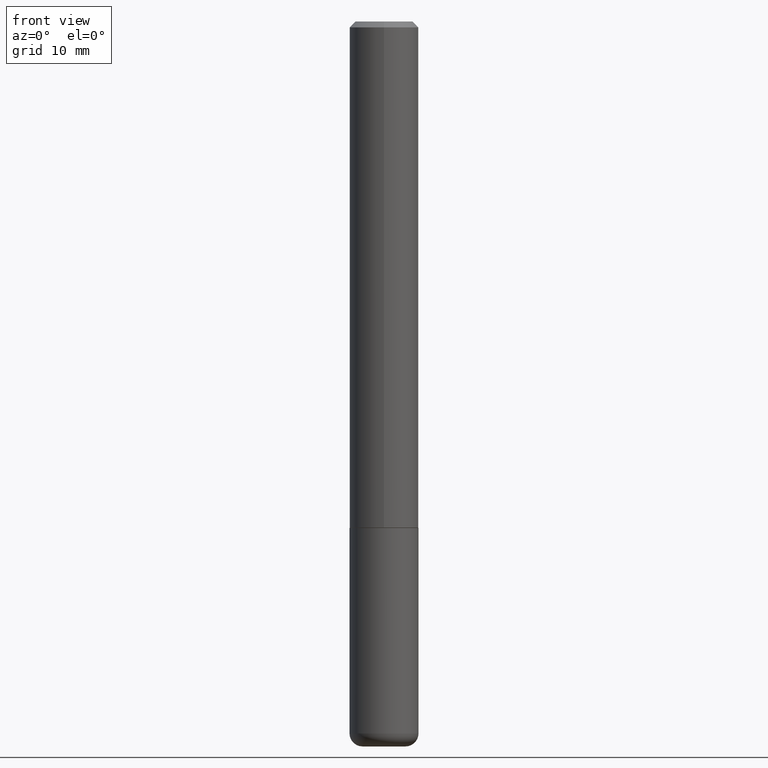
[diagram: clean part render]
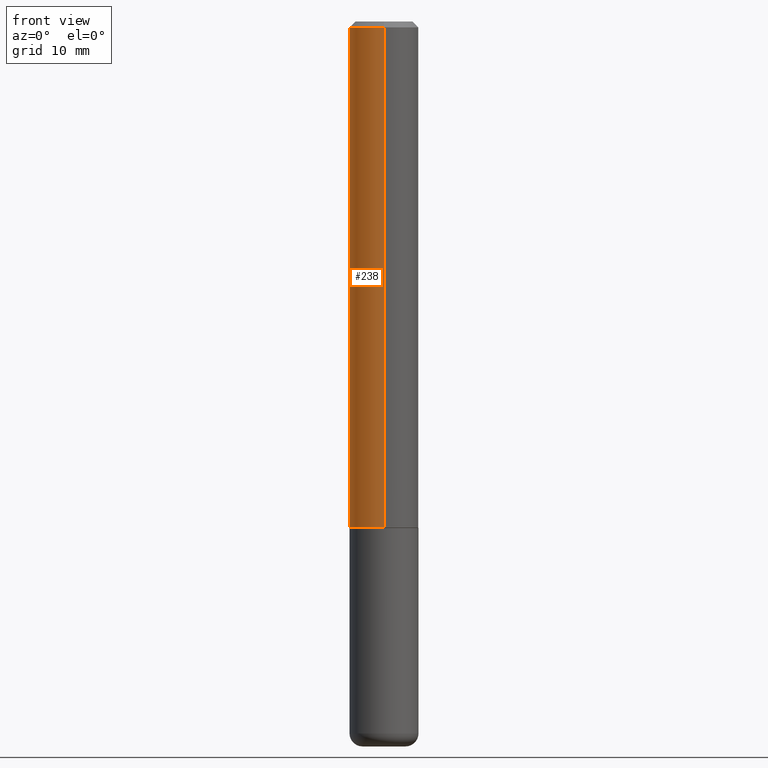
[diagram: same view with one face highlighted and labeled with its STEP entity id]
A machine part, front view. The second image highlights one B-rep face of the part: STEP entity #238.
In plain terms, the highlighted cylindrical surface (edge-blend (fillet) strip) has radius 2.9997 mm, axis along (-0, 0, 1).
Its self-contained STEP definition (entity closure, byte-faithful):
#4 = VECTOR ( 'NONE', #100, 39.37007874015748143 ) ;
#5 = CARTESIAN_POINT ( 'NONE',  ( 0.000000000000000000, 0.000000000000000000, 0.000000000000000000 ) ) ;
#22 = EDGE_LOOP ( 'NONE', ( #289, #51, #87, #152 ) ) ;
#27 = CARTESIAN_POINT ( 'NONE',  ( -8.246878922347489529E-16, -0.1181000000000001354, 4.107366629272151705E-16 ) ) ;
#35 = DIRECTION ( 'NONE',  ( -6.982962677686265922E-15, -1.000000000000000000, 4.626330217890360659E-15 ) ) ;
#51 = ORIENTED_EDGE ( 'NONE', *, *, #329, .T. ) ;
#62 = VERTEX_POINT ( 'NONE', #85 ) ;
#64 = EDGE_CURVE ( 'NONE', #352, #216, #321, .T. ) ;
#65 = DIRECTION ( 'NONE',  ( -2.454972276574099560E-29, 3.477871828342207541E-15, 1.000000000000000000 ) ) ;
#85 = CARTESIAN_POINT ( 'NONE',  ( 8.246878922347486570E-16, 0.1180999999999999689, -0.02000000000000048614 ) ) ;
#86 = EDGE_CURVE ( 'NONE', #62, #216, #404, .T. ) ;
#87 = ORIENTED_EDGE ( 'NONE', *, *, #64, .T. ) ;
#89 = VERTEX_POINT ( 'NONE', #97 ) ;
#91 = DIRECTION ( 'NONE',  ( -2.454972276574099840E-29, 3.477871828342207935E-15, 1.000000000000000000 ) ) ;
#97 = CARTESIAN_POINT ( 'NONE',  ( 8.391509709327008768E-16, 0.1180999999999941957, -1.731300000000000727 ) ) ;
#100 = DIRECTION ( 'NONE',  ( -2.454972276574099840E-29, 3.477871828342207935E-15, 1.000000000000000000 ) ) ;
#104 = CARTESIAN_POINT ( 'NONE',  ( -8.246878922347070446E-16, -0.1181000000000062417, -1.731299999999999617 ) ) ;
#152 = ORIENTED_EDGE ( 'NONE', *, *, #86, .F. ) ;
#165 = AXIS2_PLACEMENT_3D ( 'NONE', #226, #388, #35 ) ;
#167 = DIRECTION ( 'NONE',  ( -6.982962677686265922E-15, -1.000000000000000000, 3.469747663417776213E-15 ) ) ;
#192 = CYLINDRICAL_SURFACE ( 'NONE', #229, 0.1181000000000001354 ) ;
#207 = CIRCLE ( 'NONE', #165, 0.1181000000000002187 ) ;
#216 = VERTEX_POINT ( 'NONE', #314 ) ;
#226 = CARTESIAN_POINT ( 'NONE',  ( 4.250293502432739127E-29, -6.021239496408864646E-15, -1.731300000000000283 ) ) ;
#227 = DIRECTION ( 'NONE',  ( -2.454972276574099560E-29, 3.477871828342207541E-15, 1.000000000000000000 ) ) ;
#229 = AXIS2_PLACEMENT_3D ( 'NONE', #5, #65, #281 ) ;
#236 = AXIS2_PLACEMENT_3D ( 'NONE', #332, #227, #167 ) ;
#238 = ADVANCED_FACE ( 'NONE', ( #255 ), #192, .T. ) ;
#255 = FACE_OUTER_BOUND ( 'NONE', #22, .T. ) ;
#279 = EDGE_CURVE ( 'NONE', #89, #62, #288, .T. ) ;
#281 = DIRECTION ( 'NONE',  ( -6.982962677686265922E-15, -1.000000000000000000, 3.477871828342207541E-15 ) ) ;
#288 = LINE ( 'NONE', #416, #4 ) ;
#289 = ORIENTED_EDGE ( 'NONE', *, *, #279, .F. ) ;
#314 = CARTESIAN_POINT ( 'NONE',  ( -8.102248135368175393E-16, -0.1181000000000001077, -0.01999999999999966735 ) ) ;
#321 = LINE ( 'NONE', #27, #396 ) ;
#329 = EDGE_CURVE ( 'NONE', #89, #352, #207, .T. ) ;
#332 = CARTESIAN_POINT ( 'NONE',  ( 4.909944553148218457E-31, -6.955743656684441311E-17, -0.02000000000000007674 ) ) ;
#352 = VERTEX_POINT ( 'NONE', #104 ) ;
#388 = DIRECTION ( 'NONE',  ( -2.454972276574099560E-29, 3.477871828342207541E-15, 1.000000000000000000 ) ) ;
#396 = VECTOR ( 'NONE', #91, 39.37007874015748143 ) ;
#404 = CIRCLE ( 'NONE', #236, 0.1181000000000000383 ) ;
#416 = CARTESIAN_POINT ( 'NONE',  ( 8.391509709326791832E-16, 0.1181000000000001354, -4.107366629272151705E-16 ) ) ;